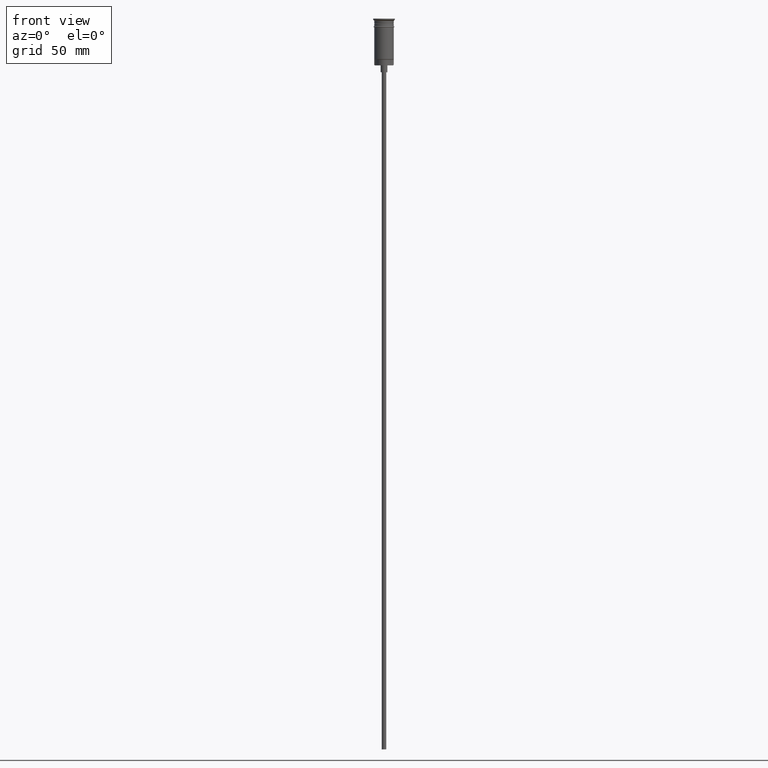
[diagram: clean part render]
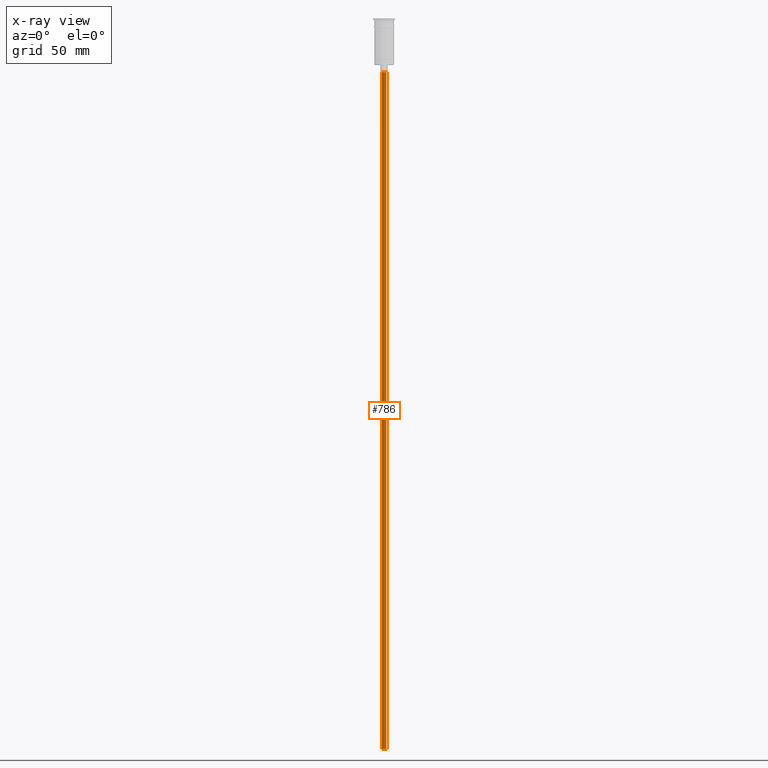
[diagram: x-ray — body ghosted, one internal face saturated and labeled with its STEP entity id]
A machine part, front view, then the same camera in x-ray: the body is ghosted and one INTERNAL B-rep face — a face not visible from any outside direction — is saturated and labeled: STEP entity #786.
In plain terms, the highlighted cylindrical surface (edge-blend (fillet) strip) has radius 1 mm, axis along (-0, -0, 1).
Its self-contained STEP definition (entity closure, byte-faithful):
#20 = ORIENTED_EDGE ( 'NONE', *, *, #350, .F. ) ;
#32 = ORIENTED_EDGE ( 'NONE', *, *, #846, .T. ) ;
#51 = EDGE_CURVE ( 'NONE', #901, #1216, #381, .T. ) ;
#59 = CARTESIAN_POINT ( 'NONE',  ( 0.000000000000000000, 0.000000000000000000, -320.5000000000000000 ) ) ;
#122 = AXIS2_PLACEMENT_3D ( 'NONE', #59, #1535, #159 ) ;
#159 = DIRECTION ( 'NONE',  ( 1.000000000000000000, 0.000000000000000000, 0.000000000000000000 ) ) ;
#169 = EDGE_LOOP ( 'NONE', ( #20, #1574, #32, #1477 ) ) ;
#198 = AXIS2_PLACEMENT_3D ( 'NONE', #1323, #1058, #1566 ) ;
#227 = DIRECTION ( 'NONE',  ( 0.000000000000000000, 0.000000000000000000, -1.000000000000000000 ) ) ;
#271 = DIRECTION ( 'NONE',  ( -0.000000000000000000, -0.000000000000000000, 1.000000000000000000 ) ) ;
#306 = CARTESIAN_POINT ( 'NONE',  ( 0.9999999999999997780, 0.000000000000000000, -320.5000000000000000 ) ) ;
#324 = VECTOR ( 'NONE', #271, 1000.000000000000000 ) ;
#350 = EDGE_CURVE ( 'NONE', #1216, #1329, #541, .T. ) ;
#381 = CIRCLE ( 'NONE', #198, 0.9999999999999997780 ) ;
#464 = VECTOR ( 'NONE', #883, 1000.000000000000000 ) ;
#541 = LINE ( 'NONE', #1510, #464 ) ;
#659 = CARTESIAN_POINT ( 'NONE',  ( -0.9999999999999997780, 1.224646799147352961E-16, -320.5000000000000000 ) ) ;
#667 = VERTEX_POINT ( 'NONE', #999 ) ;
#683 = CIRCLE ( 'NONE', #1587, 0.9999999999999997780 ) ;
#686 = CARTESIAN_POINT ( 'NONE',  ( 0.9999999999999997780, 0.000000000000000000, -320.5000000000000000 ) ) ;
#782 = CYLINDRICAL_SURFACE ( 'NONE', #122, 0.9999999999999997780 ) ;
#786 = ADVANCED_FACE ( 'NONE', ( #875 ), #782, .T. ) ;
#846 = EDGE_CURVE ( 'NONE', #901, #667, #1411, .T. ) ;
#875 = FACE_OUTER_BOUND ( 'NONE', #169, .T. ) ;
#883 = DIRECTION ( 'NONE',  ( -0.000000000000000000, -0.000000000000000000, 1.000000000000000000 ) ) ;
#901 = VERTEX_POINT ( 'NONE', #686 ) ;
#933 = CARTESIAN_POINT ( 'NONE',  ( -0.9999999999999997780, 1.224646799147352961E-16, -23.49999999999999645 ) ) ;
#999 = CARTESIAN_POINT ( 'NONE',  ( 0.9999999999999997780, 0.000000000000000000, -23.49999999999999645 ) ) ;
#1058 = DIRECTION ( 'NONE',  ( 0.000000000000000000, 0.000000000000000000, -1.000000000000000000 ) ) ;
#1216 = VERTEX_POINT ( 'NONE', #659 ) ;
#1323 = CARTESIAN_POINT ( 'NONE',  ( 0.000000000000000000, 0.000000000000000000, -320.5000000000000000 ) ) ;
#1329 = VERTEX_POINT ( 'NONE', #933 ) ;
#1411 = LINE ( 'NONE', #306, #324 ) ;
#1471 = CARTESIAN_POINT ( 'NONE',  ( 0.000000000000000000, 0.000000000000000000, -23.49999999999999645 ) ) ;
#1477 = ORIENTED_EDGE ( 'NONE', *, *, #1537, .T. ) ;
#1510 = CARTESIAN_POINT ( 'NONE',  ( -0.9999999999999997780, 1.224646799147352961E-16, -320.5000000000000000 ) ) ;
#1535 = DIRECTION ( 'NONE',  ( -0.000000000000000000, -0.000000000000000000, 1.000000000000000000 ) ) ;
#1537 = EDGE_CURVE ( 'NONE', #667, #1329, #683, .T. ) ;
#1566 = DIRECTION ( 'NONE',  ( -1.000000000000000000, 0.000000000000000000, 0.000000000000000000 ) ) ;
#1574 = ORIENTED_EDGE ( 'NONE', *, *, #51, .F. ) ;
#1575 = DIRECTION ( 'NONE',  ( -1.000000000000000000, 0.000000000000000000, 0.000000000000000000 ) ) ;
#1587 = AXIS2_PLACEMENT_3D ( 'NONE', #1471, #227, #1575 ) ;